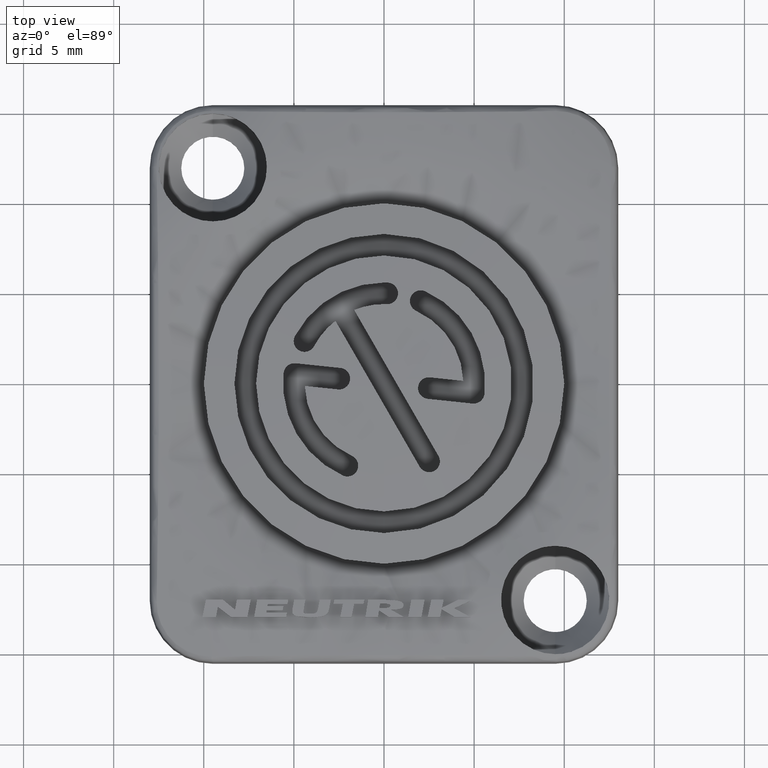
[diagram: clean part render]
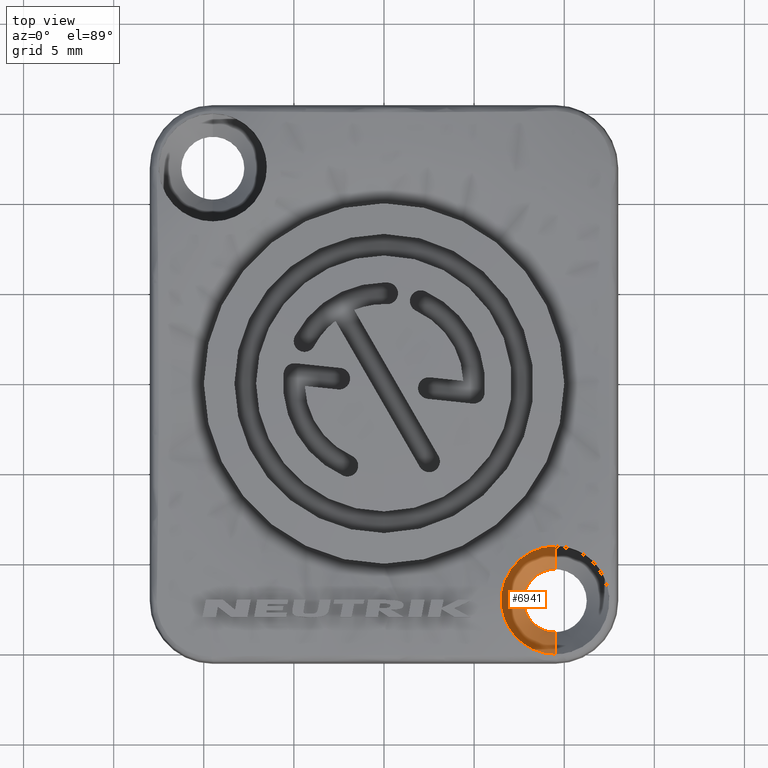
[diagram: same view with one face highlighted and labeled with its STEP entity id]
A machine part, top view. The second image highlights one B-rep face of the part: STEP entity #6941.
In plain terms, the highlighted conical surface has half-angle 45 deg.
Its self-contained STEP definition (entity closure, byte-faithful):
#2980=CARTESIAN_POINT('',(9.5E0,-1.2E1,1.5E0));
#2981=DIRECTION('',(0.E0,0.E0,1.E0));
#2982=DIRECTION('',(0.E0,1.E0,0.E0));
#2983=AXIS2_PLACEMENT_3D('',#2980,#2981,#2982);
#2989=DIRECTION('',(0.E0,-7.071067811865E-1,7.071067811865E-1));
#2990=VECTOR('',#2989,1.767766952966E0);
#2991=CARTESIAN_POINT('',(9.5E0,-1.375E1,2.5E-1));
#2992=LINE('',#2991,#2990);
#2993=DIRECTION('',(0.E0,7.071067811865E-1,7.071067811865E-1));
#2994=VECTOR('',#2993,1.767766952966E0);
#2995=CARTESIAN_POINT('',(9.5E0,-1.025E1,2.5E-1));
#2996=LINE('',#2995,#2994);
#3006=CARTESIAN_POINT('',(9.5E0,-1.2E1,2.5E-1));
#3007=DIRECTION('',(0.E0,0.E0,1.E0));
#3008=DIRECTION('',(0.E0,1.E0,0.E0));
#3009=AXIS2_PLACEMENT_3D('',#3006,#3007,#3008);
#3016=CARTESIAN_POINT('',(9.5E0,-1.2E1,2.5E-1));
#3017=DIRECTION('',(0.E0,0.E0,1.E0));
#3018=DIRECTION('',(-1.E0,0.E0,0.E0));
#3019=AXIS2_PLACEMENT_3D('',#3016,#3017,#3018);
#3569=CARTESIAN_POINT('',(9.5E0,-9.E0,1.5E0));
#3570=CARTESIAN_POINT('',(9.5E0,-1.5E1,1.5E0));
#3571=VERTEX_POINT('',#3569);
#3572=VERTEX_POINT('',#3570);
#3574=CARTESIAN_POINT('',(9.5E0,-1.025E1,2.5E-1));
#3576=VERTEX_POINT('',#3574);
#3577=CARTESIAN_POINT('',(7.75E0,-1.2E1,2.5E-1));
#3578=VERTEX_POINT('',#3577);
#3579=CARTESIAN_POINT('',(9.5E0,-1.375E1,2.5E-1));
#3580=VERTEX_POINT('',#3579);
#6925=CARTESIAN_POINT('',(9.5E0,-1.2E1,8.75E-1));
#6926=DIRECTION('',(0.E0,0.E0,1.E0));
#6927=DIRECTION('',(0.E0,1.E0,0.E0));
#6928=AXIS2_PLACEMENT_3D('',#6925,#6926,#6927);
#6929=CONICAL_SURFACE('',#6928,2.375E0,4.5E1);
#6931=ORIENTED_EDGE('',*,*,#6930,.T.);
#6933=ORIENTED_EDGE('',*,*,#6932,.T.);
#6935=ORIENTED_EDGE('',*,*,#6934,.T.);
#6936=ORIENTED_EDGE('',*,*,#6918,.F.);
#6938=ORIENTED_EDGE('',*,*,#6937,.F.);
#6939=EDGE_LOOP('',(#6931,#6933,#6935,#6936,#6938));
#6940=FACE_OUTER_BOUND('',#6939,.F.);
#2984=CIRCLE('',#2983,3.E0);
#3010=CIRCLE('',#3009,1.75E0);
#3020=CIRCLE('',#3019,1.75E0);
#6918=EDGE_CURVE('',#3571,#3572,#2984,.T.);
#6930=EDGE_CURVE('',#3576,#3578,#3010,.T.);
#6932=EDGE_CURVE('',#3578,#3580,#3020,.T.);
#6934=EDGE_CURVE('',#3580,#3572,#2992,.T.);
#6937=EDGE_CURVE('',#3576,#3571,#2996,.T.);
#6941=ADVANCED_FACE('',(#6940),#6929,.F.);